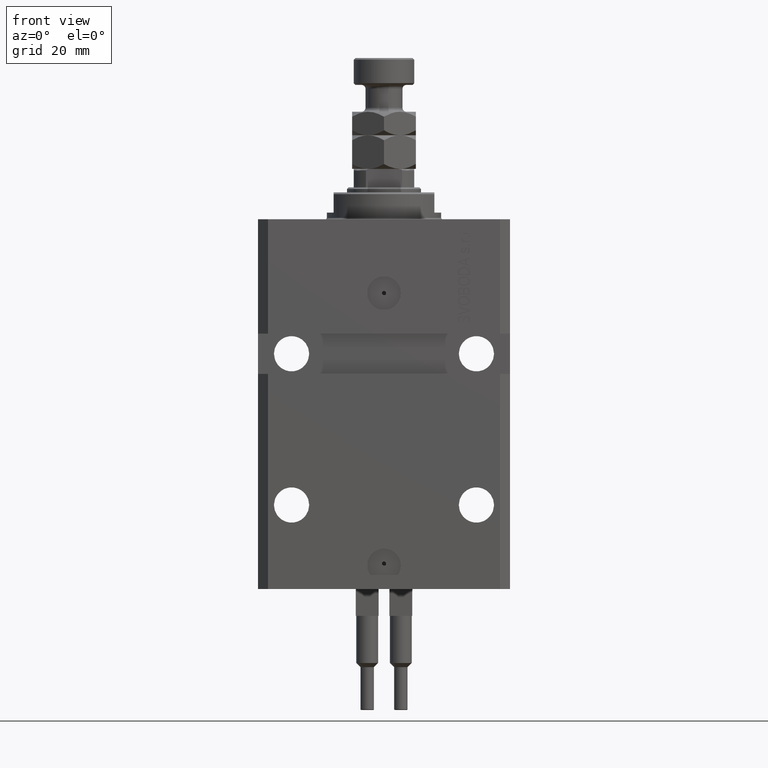
[diagram: clean part render]
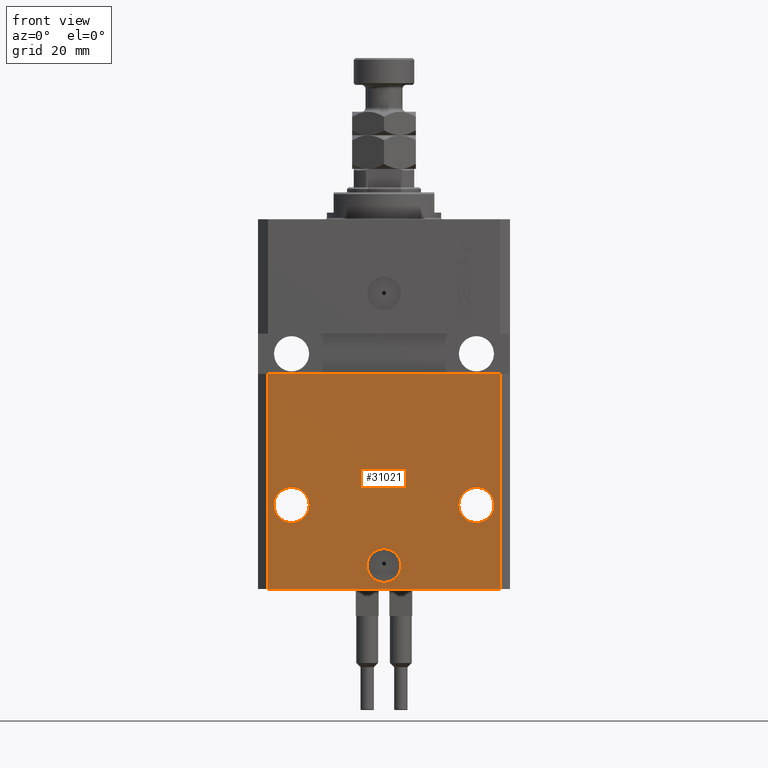
[diagram: same view with one face highlighted and labeled with its STEP entity id]
A machine part, front view. The second image highlights one B-rep face of the part: STEP entity #31021.
In plain terms, the highlighted planar face has unit normal (0, -1, 0).
Its self-contained STEP definition (entity closure, byte-faithful):
#351 = CIRCLE ( 'NONE', #22045, 5.249999999999994671 ) ;
#829 = LINE ( 'NONE', #16206, #22957 ) ;
#1201 = CARTESIAN_POINT ( 'NONE',  ( 0.000000000000000000, -27.49999999999999645, -103.0000000000000000 ) ) ;
#2462 = EDGE_CURVE ( 'NONE', #2473, #20402, #9520, .T. ) ;
#2473 = VERTEX_POINT ( 'NONE', #13107 ) ;
#2534 = CARTESIAN_POINT ( 'NONE',  ( -22.25000000000002132, -27.50000000000000000, -84.99999999999998579 ) ) ;
#2607 = ORIENTED_EDGE ( 'NONE', *, *, #6111, .F. ) ;
#3494 = FACE_BOUND ( 'NONE', #47686, .T. ) ;
#3686 = VERTEX_POINT ( 'NONE', #25092 ) ;
#3820 = DIRECTION ( 'NONE',  ( 1.000000000000000000, 0.000000000000000000, 0.000000000000000000 ) ) ;
#3827 = VECTOR ( 'NONE', #24070, 1000.000000000000000 ) ;
#5691 = AXIS2_PLACEMENT_3D ( 'NONE', #32068, #16196, #31821 ) ;
#6111 = EDGE_CURVE ( 'NONE', #37291, #48135, #41044, .T. ) ;
#7141 = EDGE_CURVE ( 'NONE', #3686, #49578, #49704, .T. ) ;
#8266 = EDGE_CURVE ( 'NONE', #13471, #16895, #34566, .T. ) ;
#8621 = AXIS2_PLACEMENT_3D ( 'NONE', #38284, #19095, #34485 ) ;
#9457 = CARTESIAN_POINT ( 'NONE',  ( 34.49999999999999289, -27.49999999999999645, -110.0000000000000000 ) ) ;
#9520 = CIRCLE ( 'NONE', #44924, 5.249999999999994671 ) ;
#10164 = CARTESIAN_POINT ( 'NONE',  ( -34.49999999999998579, -27.49999999999999645, -110.0000000000000000 ) ) ;
#10948 = ORIENTED_EDGE ( 'NONE', *, *, #33377, .T. ) ;
#13107 = CARTESIAN_POINT ( 'NONE',  ( -32.75000000000000711, -27.50000000000000000, -84.99999999999998579 ) ) ;
#13471 = VERTEX_POINT ( 'NONE', #10164 ) ;
#13640 = CARTESIAN_POINT ( 'NONE',  ( -5.000000000000006217, -27.49999999999999645, -103.0000000000000000 ) ) ;
#14010 = CIRCLE ( 'NONE', #28497, 5.249999999999994671 ) ;
#14208 = ORIENTED_EDGE ( 'NONE', *, *, #17662, .F. ) ;
#14819 = CARTESIAN_POINT ( 'NONE',  ( -27.50000000000001421, -27.50000000000000000, -84.99999999999998579 ) ) ;
#15080 = FACE_OUTER_BOUND ( 'NONE', #40517, .T. ) ;
#15479 = DIRECTION ( 'NONE',  ( 1.176083712526788232E-16, -1.000000000000000000, 0.000000000000000000 ) ) ;
#16196 = DIRECTION ( 'NONE',  ( 1.176083712526788232E-16, -1.000000000000000000, 0.000000000000000000 ) ) ;
#16206 = CARTESIAN_POINT ( 'NONE',  ( -34.49999999999998579, -27.49999999999999645, -110.0000000000000000 ) ) ;
#16895 = VERTEX_POINT ( 'NONE', #36600 ) ;
#16929 = CARTESIAN_POINT ( 'NONE',  ( 5.000000000000006217, -27.49999999999999645, -103.0000000000000000 ) ) ;
#17163 = ORIENTED_EDGE ( 'NONE', *, *, #8266, .T. ) ;
#17662 = EDGE_CURVE ( 'NONE', #20402, #2473, #14010, .T. ) ;
#18931 = DIRECTION ( 'NONE',  ( 1.000000000000000000, 9.251858538542972814E-17, -9.251858538542972814E-17 ) ) ;
#19095 = DIRECTION ( 'NONE',  ( 0.000000000000000000, -1.000000000000000000, 0.000000000000000000 ) ) ;
#19150 = ORIENTED_EDGE ( 'NONE', *, *, #7141, .F. ) ;
#20025 = EDGE_LOOP ( 'NONE', ( #41505, #25763 ) ) ;
#20213 = CARTESIAN_POINT ( 'NONE',  ( 0.000000000000000000, -27.49999999999999645, -103.0000000000000000 ) ) ;
#20402 = VERTEX_POINT ( 'NONE', #2534 ) ;
#22045 = AXIS2_PLACEMENT_3D ( 'NONE', #45492, #15479, #30854 ) ;
#22501 = CARTESIAN_POINT ( 'NONE',  ( 22.25000000000002132, -27.49999999999999289, -84.99999999999998579 ) ) ;
#22517 = AXIS2_PLACEMENT_3D ( 'NONE', #20213, #43425, #42943 ) ;
#22551 = VECTOR ( 'NONE', #18931, 1000.000000000000000 ) ;
#22629 = FACE_BOUND ( 'NONE', #47267, .T. ) ;
#22957 = VECTOR ( 'NONE', #39413, 1000.000000000000000 ) ;
#24070 = DIRECTION ( 'NONE',  ( 0.000000000000000000, 0.000000000000000000, 1.000000000000000000 ) ) ;
#24470 = ORIENTED_EDGE ( 'NONE', *, *, #2462, .F. ) ;
#24645 = AXIS2_PLACEMENT_3D ( 'NONE', #1201, #32196, #44045 ) ;
#25092 = CARTESIAN_POINT ( 'NONE',  ( -34.49999999999998579, -27.50000000000000000, -46.00000000000000000 ) ) ;
#25568 = EDGE_CURVE ( 'NONE', #33422, #39010, #351, .T. ) ;
#25763 = ORIENTED_EDGE ( 'NONE', *, *, #43107, .F. ) ;
#27848 = LINE ( 'NONE', #9457, #3827 ) ;
#28335 = EDGE_CURVE ( 'NONE', #13471, #3686, #829, .T. ) ;
#28497 = AXIS2_PLACEMENT_3D ( 'NONE', #14819, #30672, #38752 ) ;
#29581 = CIRCLE ( 'NONE', #24645, 5.000000000000006217 ) ;
#29823 = CIRCLE ( 'NONE', #5691, 5.249999999999994671 ) ;
#30452 = PLANE ( 'NONE',  #8621 ) ;
#30672 = DIRECTION ( 'NONE',  ( 1.176083712526788232E-16, -1.000000000000000000, 0.000000000000000000 ) ) ;
#30854 = DIRECTION ( 'NONE',  ( 1.000000000000000000, 0.000000000000000000, 0.000000000000000000 ) ) ;
#31021 = ADVANCED_FACE ( 'NONE', ( #22629, #37774, #3494, #15080 ), #30452, .T. ) ;
#31821 = DIRECTION ( 'NONE',  ( 1.000000000000000000, 0.000000000000000000, 0.000000000000000000 ) ) ;
#32068 = CARTESIAN_POINT ( 'NONE',  ( 27.50000000000001421, -27.49999999999999289, -84.99999999999998579 ) ) ;
#32196 = DIRECTION ( 'NONE',  ( 1.176083712526788232E-16, -1.000000000000000000, 0.000000000000000000 ) ) ;
#32509 = DIRECTION ( 'NONE',  ( 1.176083712526788232E-16, -1.000000000000000000, 0.000000000000000000 ) ) ;
#33015 = EDGE_CURVE ( 'NONE', #48135, #37291, #29581, .T. ) ;
#33083 = VECTOR ( 'NONE', #3820, 1000.000000000000000 ) ;
#33245 = ORIENTED_EDGE ( 'NONE', *, *, #28335, .F. ) ;
#33377 = EDGE_CURVE ( 'NONE', #16895, #49578, #27848, .T. ) ;
#33422 = VERTEX_POINT ( 'NONE', #43746 ) ;
#34485 = DIRECTION ( 'NONE',  ( 0.000000000000000000, -0.000000000000000000, -1.000000000000000000 ) ) ;
#34566 = LINE ( 'NONE', #38360, #33083 ) ;
#36600 = CARTESIAN_POINT ( 'NONE',  ( 34.49999999999999289, -27.49999999999999645, -110.0000000000000000 ) ) ;
#36853 = ORIENTED_EDGE ( 'NONE', *, *, #33015, .F. ) ;
#37291 = VERTEX_POINT ( 'NONE', #13640 ) ;
#37774 = FACE_BOUND ( 'NONE', #20025, .T. ) ;
#38284 = CARTESIAN_POINT ( 'NONE',  ( -34.49999999999998579, -27.49999999999999645, -110.0000000000000000 ) ) ;
#38360 = CARTESIAN_POINT ( 'NONE',  ( -34.49999999999998579, -27.49999999999999645, -110.0000000000000000 ) ) ;
#38752 = DIRECTION ( 'NONE',  ( -1.000000000000000000, 0.000000000000000000, 0.000000000000000000 ) ) ;
#39010 = VERTEX_POINT ( 'NONE', #22501 ) ;
#39413 = DIRECTION ( 'NONE',  ( 0.000000000000000000, 0.000000000000000000, 1.000000000000000000 ) ) ;
#40517 = EDGE_LOOP ( 'NONE', ( #19150, #33245, #17163, #10948 ) ) ;
#40591 = CARTESIAN_POINT ( 'NONE',  ( -27.50000000000001421, -27.50000000000000000, -84.99999999999998579 ) ) ;
#41044 = CIRCLE ( 'NONE', #22517, 5.000000000000006217 ) ;
#41505 = ORIENTED_EDGE ( 'NONE', *, *, #25568, .F. ) ;
#41892 = CARTESIAN_POINT ( 'NONE',  ( -37.50000000000000000, -27.50000000000000000, -46.00000000000000000 ) ) ;
#42943 = DIRECTION ( 'NONE',  ( 1.000000000000000000, 0.000000000000000000, 0.000000000000000000 ) ) ;
#43107 = EDGE_CURVE ( 'NONE', #39010, #33422, #29823, .T. ) ;
#43425 = DIRECTION ( 'NONE',  ( 1.176083712526788232E-16, -1.000000000000000000, 0.000000000000000000 ) ) ;
#43746 = CARTESIAN_POINT ( 'NONE',  ( 32.75000000000000711, -27.49999999999999289, -84.99999999999998579 ) ) ;
#44045 = DIRECTION ( 'NONE',  ( 1.000000000000000000, 0.000000000000000000, 0.000000000000000000 ) ) ;
#44924 = AXIS2_PLACEMENT_3D ( 'NONE', #40591, #32509, #48144 ) ;
#45492 = CARTESIAN_POINT ( 'NONE',  ( 27.50000000000001421, -27.49999999999999289, -84.99999999999998579 ) ) ;
#47267 = EDGE_LOOP ( 'NONE', ( #36853, #2607 ) ) ;
#47686 = EDGE_LOOP ( 'NONE', ( #14208, #24470 ) ) ;
#48135 = VERTEX_POINT ( 'NONE', #16929 ) ;
#48144 = DIRECTION ( 'NONE',  ( -1.000000000000000000, 0.000000000000000000, 0.000000000000000000 ) ) ;
#48231 = CARTESIAN_POINT ( 'NONE',  ( 34.49999999999999289, -27.49999999999999289, -46.00000000000000711 ) ) ;
#49578 = VERTEX_POINT ( 'NONE', #48231 ) ;
#49704 = LINE ( 'NONE', #41892, #22551 ) ;